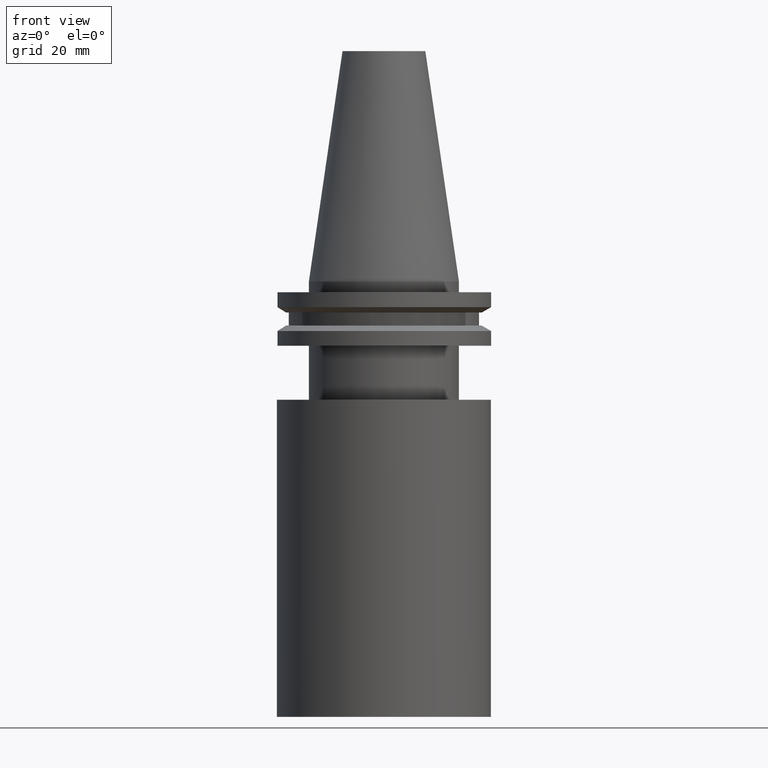
[diagram: clean part render]
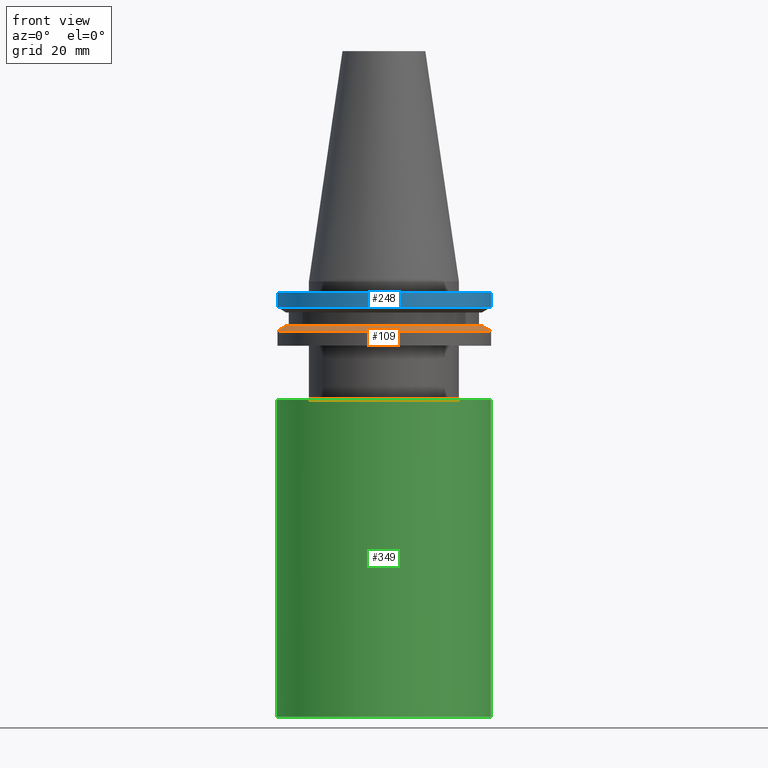
[diagram: same view with three faces highlighted in distinct colors, each labeled with its STEP entity id]
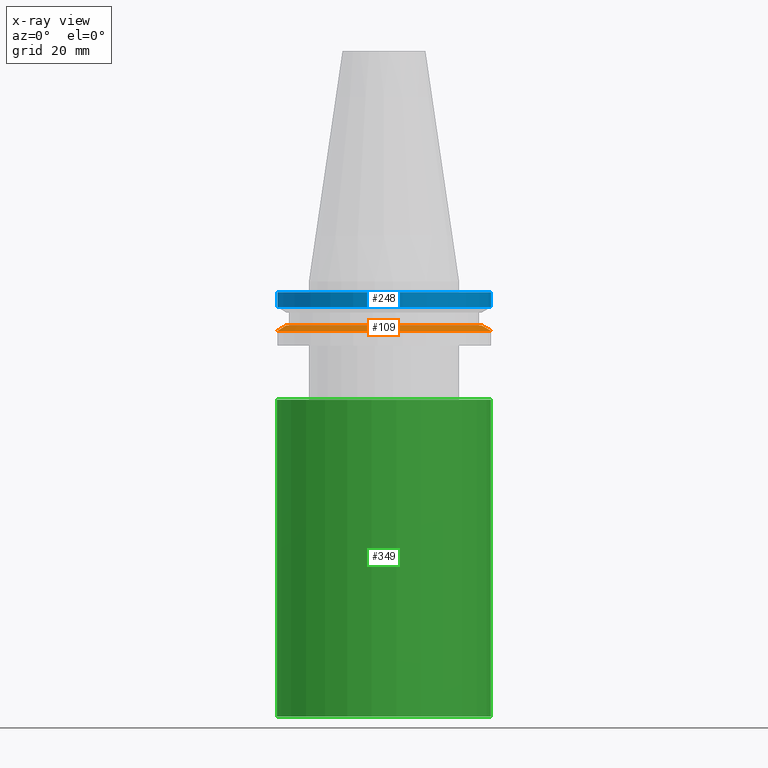
[diagram: x-ray of the same camera — body ghosted, the three highlighted faces saturated]
A machine part, front view with three faces highlighted in distinct colors.
The next image is the same camera in x-ray (body ghosted, the three faces saturated) — at least one of them is partly hidden behind the body in this view.
Their STEP definitions:

[orange] entity #109 — the highlighted conical surface has half-angle 60 deg.
#9 = AXIS2_PLACEMENT_3D ( 'NONE', #383, #196, #69 ) ;
#13 = EDGE_LOOP ( 'NONE', ( #120 ) ) ;
#18 = FACE_BOUND ( 'NONE', #251, .T. ) ;
#52 = EDGE_CURVE ( 'NONE', #368, #368, #268, .T. ) ;
#68 = EDGE_CURVE ( 'NONE', #91, #91, #393, .T. ) ;
#69 = DIRECTION ( 'NONE',  ( 1.000000000000000000, 0.000000000000000000, 0.000000000000000000 ) ) ;
#86 = CARTESIAN_POINT ( 'NONE',  ( 31.75000000000000000, 0.000000000000000000, -14.65472339340266572 ) ) ;
#91 = VERTEX_POINT ( 'NONE', #86 ) ;
#106 = DIRECTION ( 'NONE',  ( 1.000000000000000000, 0.000000000000000000, 0.000000000000000000 ) ) ;
#108 = CARTESIAN_POINT ( 'NONE',  ( 0.000000000000000000, 0.000000000000000000, -14.65472339340266572 ) ) ;
#109 = ADVANCED_FACE ( 'NONE', ( #18, #168 ), #229, .T. ) ;
#120 = ORIENTED_EDGE ( 'NONE', *, *, #68, .T. ) ;
#132 = ORIENTED_EDGE ( 'NONE', *, *, #52, .F. ) ;
#168 = FACE_OUTER_BOUND ( 'NONE', #13, .T. ) ;
#186 = CARTESIAN_POINT ( 'NONE',  ( 28.97919780457008088, 0.000000000000000000, -13.05499999999999794 ) ) ;
#196 = DIRECTION ( 'NONE',  ( -0.000000000000000000, -0.000000000000000000, 1.000000000000000000 ) ) ;
#203 = DIRECTION ( 'NONE',  ( 0.000000000000000000, 0.000000000000000000, -1.000000000000000000 ) ) ;
#229 = CONICAL_SURFACE ( 'NONE', #245, 31.75000000000000000, 1.047197551196597853 ) ;
#245 = AXIS2_PLACEMENT_3D ( 'NONE', #108, #203, #287 ) ;
#251 = EDGE_LOOP ( 'NONE', ( #132 ) ) ;
#260 = AXIS2_PLACEMENT_3D ( 'NONE', #311, #285, #106 ) ;
#268 = CIRCLE ( 'NONE', #260, 28.97919780457008088 ) ;
#285 = DIRECTION ( 'NONE',  ( -0.000000000000000000, -0.000000000000000000, 1.000000000000000000 ) ) ;
#287 = DIRECTION ( 'NONE',  ( -1.000000000000000000, 0.000000000000000000, 0.000000000000000000 ) ) ;
#311 = CARTESIAN_POINT ( 'NONE',  ( 0.000000000000000000, 0.000000000000000000, -13.05499999999999794 ) ) ;
#368 = VERTEX_POINT ( 'NONE', #186 ) ;
#383 = CARTESIAN_POINT ( 'NONE',  ( 0.000000000000000000, 0.000000000000000000, -14.65472339340266572 ) ) ;
#393 = CIRCLE ( 'NONE', #9, 31.75000000000000000 ) ;

[blue] entity #248 — the highlighted cylindrical surface (bore or boss wall) has radius 31.75 mm, axis along (-0, -0, 1).
#54 = CIRCLE ( 'NONE', #61, 31.75000000000000000 ) ;
#60 = AXIS2_PLACEMENT_3D ( 'NONE', #297, #294, #80 ) ;
#61 = AXIS2_PLACEMENT_3D ( 'NONE', #306, #216, #119 ) ;
#72 = CIRCLE ( 'NONE', #60, 31.75000000000000000 ) ;
#80 = DIRECTION ( 'NONE',  ( 1.000000000000000000, 0.000000000000000000, 0.000000000000000000 ) ) ;
#84 = ORIENTED_EDGE ( 'NONE', *, *, #240, .T. ) ;
#90 = DIRECTION ( 'NONE',  ( 1.000000000000000000, 0.000000000000000000, 0.000000000000000000 ) ) ;
#119 = DIRECTION ( 'NONE',  ( 1.000000000000000000, 0.000000000000000000, 0.000000000000000000 ) ) ;
#135 = EDGE_LOOP ( 'NONE', ( #84 ) ) ;
#149 = VERTEX_POINT ( 'NONE', #266 ) ;
#157 = CARTESIAN_POINT ( 'NONE',  ( 0.000000000000000000, 0.000000000000000000, 68.25000000000000000 ) ) ;
#187 = FACE_OUTER_BOUND ( 'NONE', #281, .T. ) ;
#216 = DIRECTION ( 'NONE',  ( -0.000000000000000000, -0.000000000000000000, 1.000000000000000000 ) ) ;
#219 = DIRECTION ( 'NONE',  ( -0.000000000000000000, -0.000000000000000000, 1.000000000000000000 ) ) ;
#226 = ORIENTED_EDGE ( 'NONE', *, *, #355, .F. ) ;
#240 = EDGE_CURVE ( 'NONE', #149, #149, #54, .T. ) ;
#248 = ADVANCED_FACE ( 'NONE', ( #187, #340 ), #367, .T. ) ;
#266 = CARTESIAN_POINT ( 'NONE',  ( 31.75000000000000000, 0.000000000000000000, -7.605276606597335842 ) ) ;
#281 = EDGE_LOOP ( 'NONE', ( #226 ) ) ;
#290 = VERTEX_POINT ( 'NONE', #326 ) ;
#294 = DIRECTION ( 'NONE',  ( -0.000000000000000000, -0.000000000000000000, 1.000000000000000000 ) ) ;
#297 = CARTESIAN_POINT ( 'NONE',  ( 0.000000000000000000, 0.000000000000000000, -3.174999999999997158 ) ) ;
#306 = CARTESIAN_POINT ( 'NONE',  ( 0.000000000000000000, 0.000000000000000000, -7.605276606597335842 ) ) ;
#326 = CARTESIAN_POINT ( 'NONE',  ( 31.75000000000000000, 0.000000000000000000, -3.174999999999997158 ) ) ;
#340 = FACE_OUTER_BOUND ( 'NONE', #135, .T. ) ;
#355 = EDGE_CURVE ( 'NONE', #290, #290, #72, .T. ) ;
#356 = AXIS2_PLACEMENT_3D ( 'NONE', #157, #219, #90 ) ;
#367 = CYLINDRICAL_SURFACE ( 'NONE', #356, 31.75000000000000000 ) ;

[green] entity #349 — the highlighted cylindrical surface (bore or boss wall) has radius 31.75 mm, axis along (-0, 0, -1).
#1 = EDGE_CURVE ( 'NONE', #144, #144, #96, .T. ) ;
#10 = FACE_OUTER_BOUND ( 'NONE', #111, .T. ) ;
#44 = DIRECTION ( 'NONE',  ( -0.000000000000000000, 7.821054598067183607E-17, -1.000000000000000000 ) ) ;
#55 = AXIS2_PLACEMENT_3D ( 'NONE', #133, #163, #322 ) ;
#57 = VERTEX_POINT ( 'NONE', #182 ) ;
#65 = DIRECTION ( 'NONE',  ( 0.000000000000000000, 1.000000000000000000, 0.000000000000000000 ) ) ;
#75 = CARTESIAN_POINT ( 'NONE',  ( 0.000000000000000000, 0.000000000000000000, -35.04999999999999716 ) ) ;
#96 = CIRCLE ( 'NONE', #55, 31.74999999999999289 ) ;
#105 = FACE_OUTER_BOUND ( 'NONE', #113, .T. ) ;
#111 = EDGE_LOOP ( 'NONE', ( #366 ) ) ;
#113 = EDGE_LOOP ( 'NONE', ( #262 ) ) ;
#127 = AXIS2_PLACEMENT_3D ( 'NONE', #75, #44, #140 ) ;
#130 = CYLINDRICAL_SURFACE ( 'NONE', #185, 31.75000000000000000 ) ;
#133 = CARTESIAN_POINT ( 'NONE',  ( 0.000000000000000000, 7.347880794884119933E-15, -129.0000000000000000 ) ) ;
#140 = DIRECTION ( 'NONE',  ( 0.000000000000000000, 1.000000000000000000, 0.000000000000000000 ) ) ;
#142 = EDGE_CURVE ( 'NONE', #57, #57, #301, .T. ) ;
#144 = VERTEX_POINT ( 'NONE', #351 ) ;
#163 = DIRECTION ( 'NONE',  ( -0.000000000000000000, 7.821054598067183607E-17, -1.000000000000000000 ) ) ;
#182 = CARTESIAN_POINT ( 'NONE',  ( 0.000000000000000000, 31.75000000000000000, -35.04999999999999716 ) ) ;
#185 = AXIS2_PLACEMENT_3D ( 'NONE', #249, #343, #65 ) ;
#249 = CARTESIAN_POINT ( 'NONE',  ( 0.000000000000000000, 7.347880794884119933E-15, -129.0000000000000000 ) ) ;
#262 = ORIENTED_EDGE ( 'NONE', *, *, #142, .T. ) ;
#301 = CIRCLE ( 'NONE', #127, 31.75000000000000000 ) ;
#322 = DIRECTION ( 'NONE',  ( 0.000000000000000000, 1.000000000000000000, 0.000000000000000000 ) ) ;
#343 = DIRECTION ( 'NONE',  ( -0.000000000000000000, 7.821054598067183607E-17, -1.000000000000000000 ) ) ;
#349 = ADVANCED_FACE ( 'NONE', ( #105, #10 ), #130, .T. ) ;
#351 = CARTESIAN_POINT ( 'NONE',  ( 0.000000000000000000, 31.75000000000000000, -129.0000000000000000 ) ) ;
#366 = ORIENTED_EDGE ( 'NONE', *, *, #1, .F. ) ;